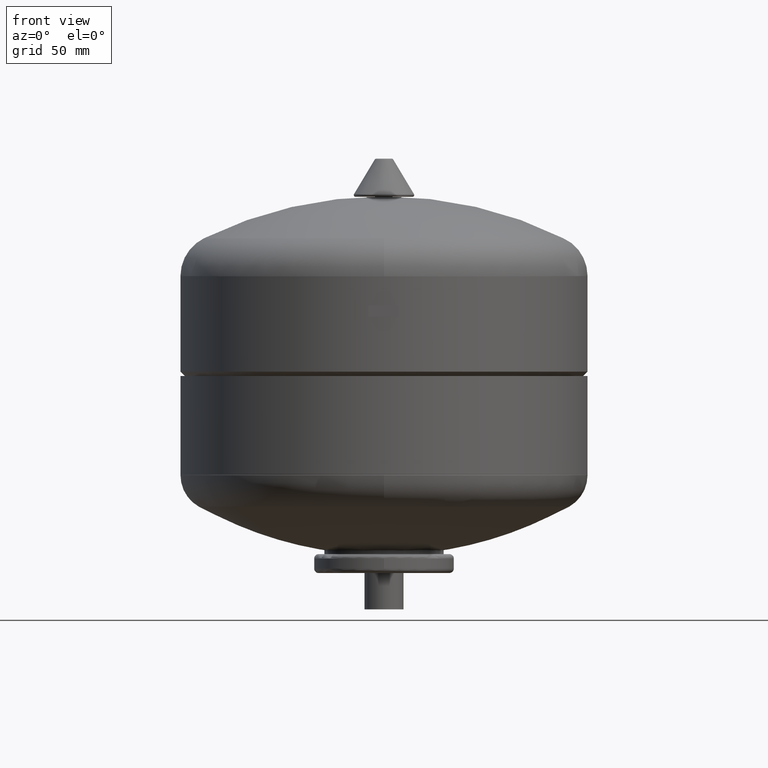
[diagram: clean part render]
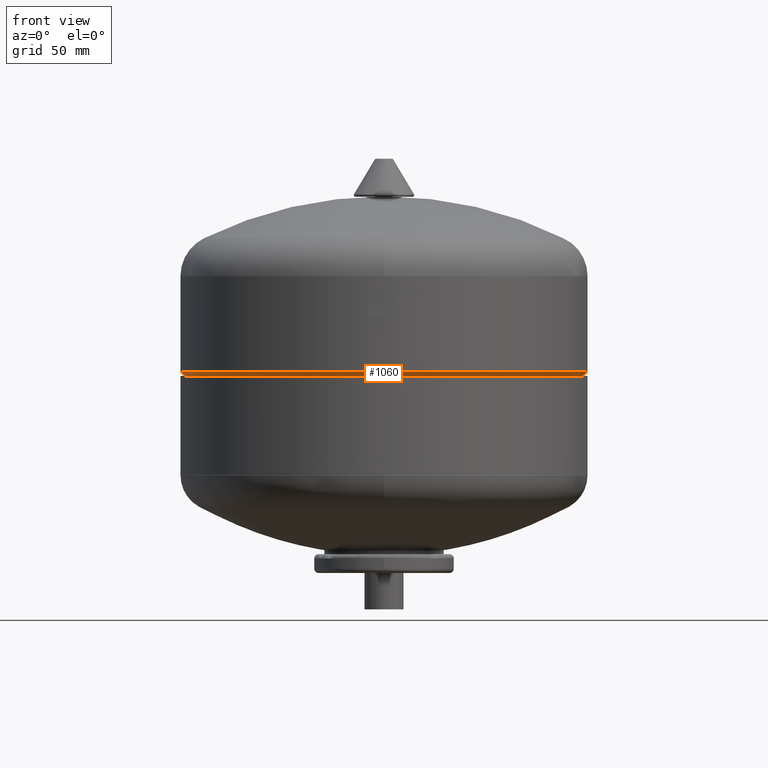
[diagram: same view with one face highlighted and labeled with its STEP entity id]
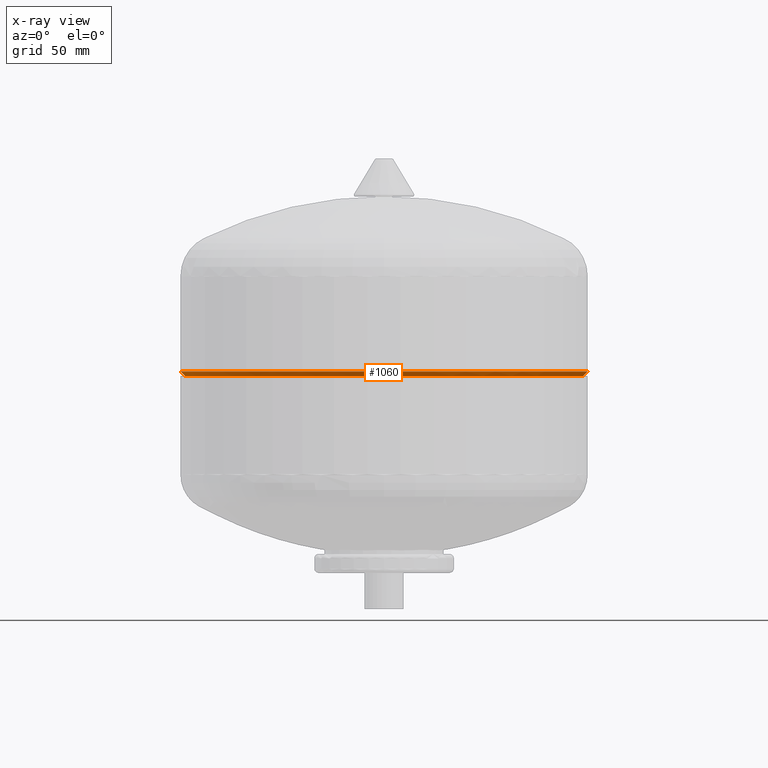
[diagram: x-ray of the same camera — body ghosted, the highlighted face saturated]
A machine part, front view. The second image highlights one B-rep face of the part: STEP entity #1060.
The next image is the same camera in x-ray: the body ghosted, the highlighted face saturated — about 0% of this face is hidden behind the body in this view.
In plain terms, the highlighted conical surface has half-angle 45 deg.
Its self-contained STEP definition (entity closure, byte-faithful):
#994=CARTESIAN_POINT('',(140.0,0.0,163.499999999999970));
#995=VERTEX_POINT('',#994);
#1011=CARTESIAN_POINT('',(-139.999999999999970,-1.714449E-014,163.500000000000000));
#1012=VERTEX_POINT('',#1011);
#1019=CARTESIAN_POINT('',(0.0,0.0,163.499999999999970));
#1020=DIRECTION('',(0.0,0.0,1.0));
#1021=DIRECTION('',(1.0,0.0,0.0));
#1022=AXIS2_PLACEMENT_3D('',#1019,#1020,#1021);
#1023=CIRCLE('',#1022,140.0);
#1024=EDGE_CURVE('',#1012,#995,#1023,.T.);
#1029=CARTESIAN_POINT('',(0.0,0.0,162.0));
#1030=DIRECTION('',(0.0,0.0,1.0));
#1031=DIRECTION('',(1.0,0.0,0.0));
#1032=AXIS2_PLACEMENT_3D('',#1029,#1030,#1031);
#1033=CONICAL_SURFACE('',#1032,138.499999999999970,45.000000000000256);
#1034=CARTESIAN_POINT('',(136.999999999999970,0.0,160.500000000000000));
#1035=VERTEX_POINT('',#1034);
#1036=CARTESIAN_POINT('',(140.0,0.0,163.499999999999970));
#1037=DIRECTION('',(-0.707106781186554,0.0,-0.707106781186541));
#1038=VECTOR('',#1037,4.242640687119285);
#1039=LINE('',#1036,#1038);
#1040=EDGE_CURVE('',#995,#1035,#1039,.T.);
#1041=ORIENTED_EDGE('',*,*,#1040,.F.);
#1042=ORIENTED_EDGE('',*,*,#1024,.F.);
#1043=CARTESIAN_POINT('',(-136.999999999999940,-1.677711E-014,160.500000000000000));
#1044=VERTEX_POINT('',#1043);
#1045=CARTESIAN_POINT('',(-139.999999999999970,-1.714449E-014,163.500000000000000));
#1046=DIRECTION('',(0.707106781186551,8.659275E-017,-0.707106781186544));
#1047=VECTOR('',#1046,4.242640687119305);
#1048=LINE('',#1045,#1047);
#1049=EDGE_CURVE('',#1012,#1044,#1048,.T.);
#1050=ORIENTED_EDGE('',*,*,#1049,.T.);
#1051=CARTESIAN_POINT('',(0.0,0.0,160.499999999999970));
#1052=DIRECTION('',(0.0,0.0,1.0));
#1053=DIRECTION('',(1.0,0.0,0.0));
#1054=AXIS2_PLACEMENT_3D('',#1051,#1052,#1053);
#1055=CIRCLE('',#1054,136.999999999999970);
#1056=EDGE_CURVE('',#1044,#1035,#1055,.T.);
#1057=ORIENTED_EDGE('',*,*,#1056,.T.);
#1058=EDGE_LOOP('',(#1041,#1042,#1050,#1057));
#1059=FACE_OUTER_BOUND('',#1058,.T.);
#1060=ADVANCED_FACE('',(#1059),#1033,.T.);